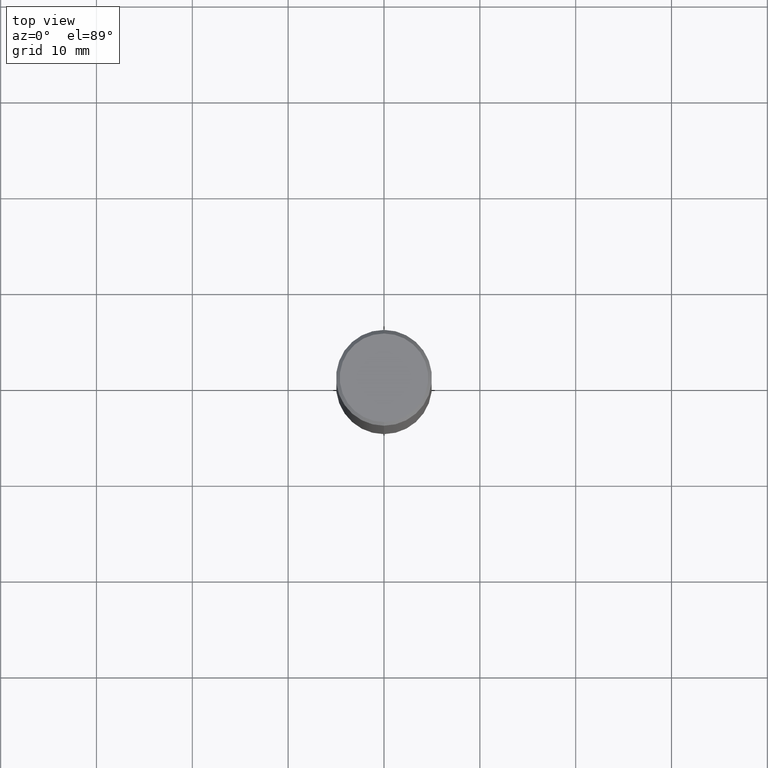
[diagram: clean part render]
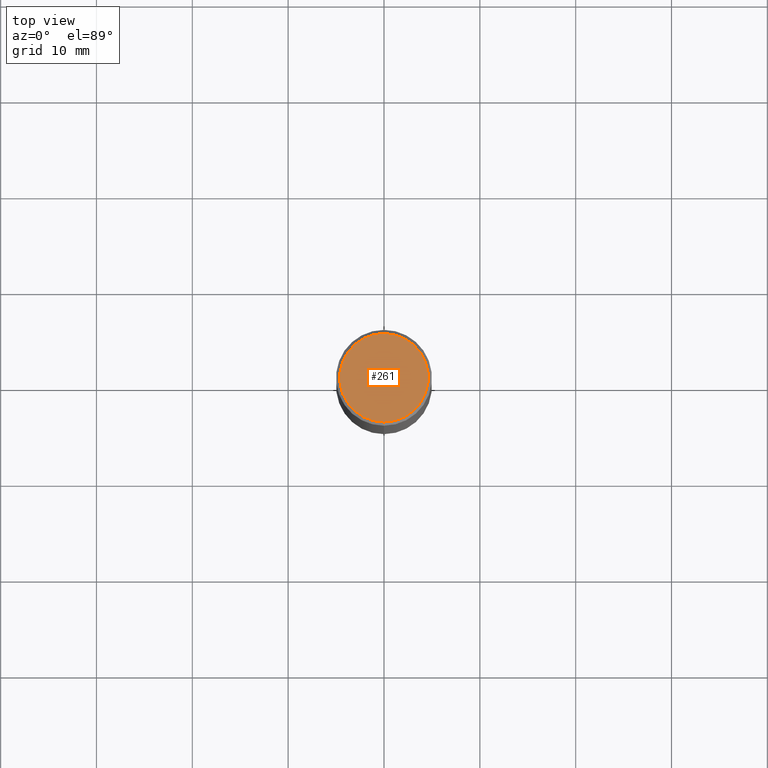
[diagram: same view with one face highlighted and labeled with its STEP entity id]
A machine part, top view. The second image highlights one B-rep face of the part: STEP entity #261.
In plain terms, the highlighted planar face has unit normal (0, -0, -1).
Its self-contained STEP definition (entity closure, byte-faithful):
#7 = DIRECTION ( 'NONE',  ( 6.982962677686265922E-15, 1.000000000000000000, -3.490923322346021182E-15 ) ) ;
#56 = ORIENTED_EDGE ( 'NONE', *, *, #124, .T. ) ;
#90 = PLANE ( 'NONE',  #147 ) ;
#91 = CIRCLE ( 'NONE', #254, 0.1818500000000000116 ) ;
#116 = DIRECTION ( 'NONE',  ( -2.445858467022432184E-29, 3.490923322346020788E-15, 1.000000000000000000 ) ) ;
#124 = EDGE_CURVE ( 'NONE', #262, #409, #91, .T. ) ;
#125 = CARTESIAN_POINT ( 'NONE',  ( 2.126280627194587718E-44, -3.034796465701640769E-30, -8.693391935237790375E-16 ) ) ;
#131 = EDGE_LOOP ( 'NONE', ( #229, #56 ) ) ;
#138 = EDGE_CURVE ( 'NONE', #409, #262, #230, .T. ) ;
#147 = AXIS2_PLACEMENT_3D ( 'NONE', #491, #213, #7 ) ;
#178 = CARTESIAN_POINT ( 'NONE',  ( -1.299035295878039226E-15, -0.1818500000000000116, -2.345147873551550940E-16 ) ) ;
#199 = DIRECTION ( 'NONE',  ( -2.445858467022432184E-29, 3.490923322346020788E-15, 1.000000000000000000 ) ) ;
#213 = DIRECTION ( 'NONE',  ( 2.445858467022431624E-29, -3.490923322346021182E-15, -1.000000000000000000 ) ) ;
#229 = ORIENTED_EDGE ( 'NONE', *, *, #138, .T. ) ;
#230 = CIRCLE ( 'NONE', #461, 0.1818500000000000116 ) ;
#246 = DIRECTION ( 'NONE',  ( -6.982962677686265133E-15, -1.000000000000000000, 3.490923322346020788E-15 ) ) ;
#254 = AXIS2_PLACEMENT_3D ( 'NONE', #472, #199, #394 ) ;
#261 = ADVANCED_FACE ( 'NONE', ( #374 ), #90, .F. ) ;
#262 = VERTEX_POINT ( 'NONE', #178 ) ;
#272 = CARTESIAN_POINT ( 'NONE',  ( 1.322223983019894726E-15, 0.1818500000000000116, -1.504163599692402932E-15 ) ) ;
#374 = FACE_OUTER_BOUND ( 'NONE', #131, .T. ) ;
#394 = DIRECTION ( 'NONE',  ( -6.982962677686265133E-15, -1.000000000000000000, 3.490923322346020788E-15 ) ) ;
#409 = VERTEX_POINT ( 'NONE', #272 ) ;
#461 = AXIS2_PLACEMENT_3D ( 'NONE', #125, #116, #246 ) ;
#472 = CARTESIAN_POINT ( 'NONE',  ( 2.126280627194587718E-44, -3.034796465701640769E-30, -8.693391935237790375E-16 ) ) ;
#491 = CARTESIAN_POINT ( 'NONE',  ( 1.269851762937247450E-15, 0.1818500000000000116, -1.069494002930513561E-15 ) ) ;